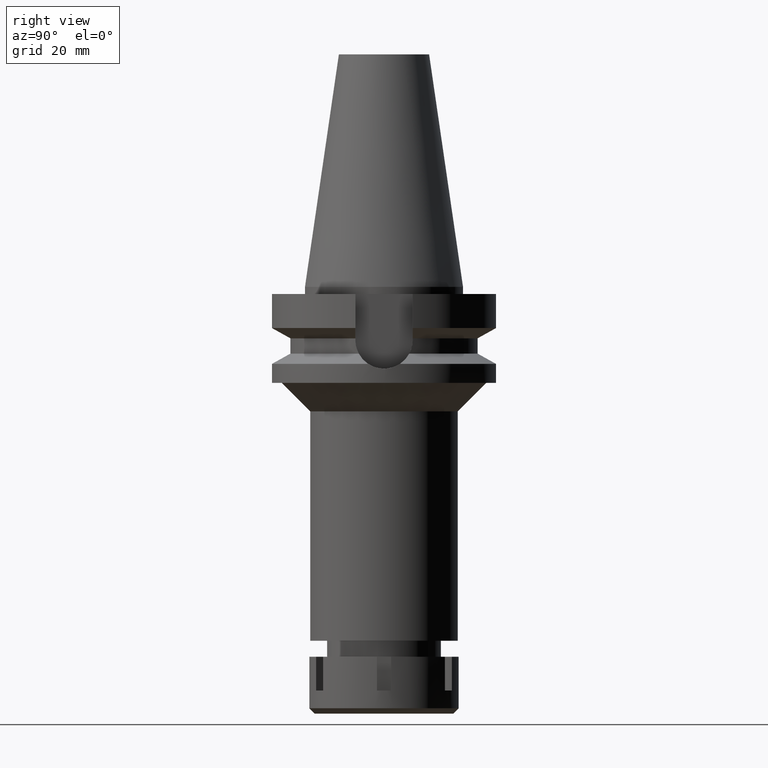
[diagram: clean part render]
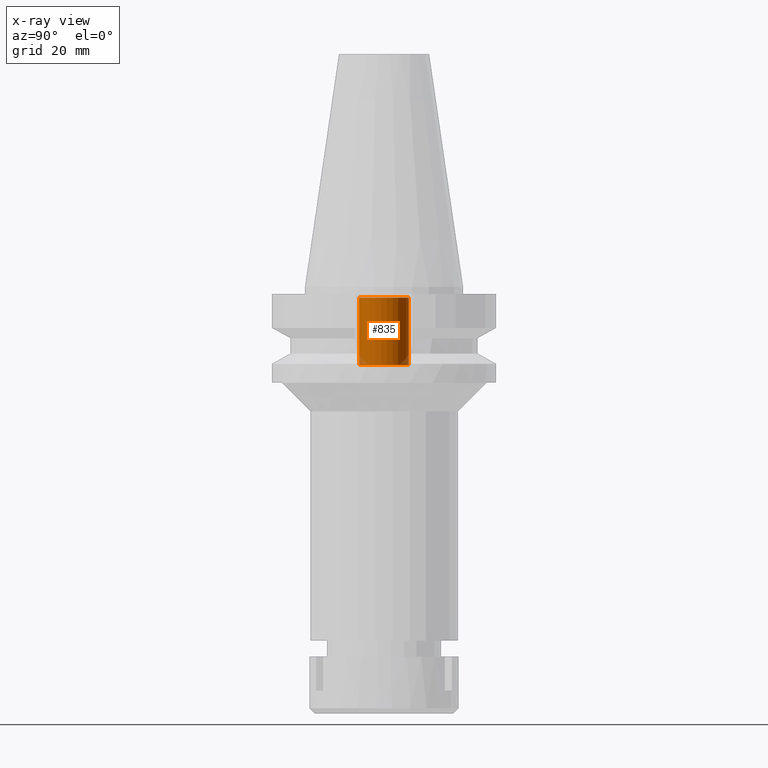
[diagram: x-ray — body ghosted, one internal face saturated and labeled with its STEP entity id]
A machine part, right view, then the same camera in x-ray: the body is ghosted and one INTERNAL B-rep face — a face not visible from any outside direction — is saturated and labeled: STEP entity #835.
In plain terms, the highlighted cylindrical surface (edge-blend (fillet) strip) has radius 7 mm, axis along (0, 0, -1).
Its self-contained STEP definition (entity closure, byte-faithful):
#43 = CYLINDRICAL_SURFACE ( 'NONE', #215, 7.000000000000000000 ) ;
#197 = CARTESIAN_POINT ( 'NONE',  ( 0.0000000000000000000, -7.000000000000000000, -22.00000000000000000 ) ) ;
#215 = AXIS2_PLACEMENT_3D ( 'NONE', #3120, #944, #1429 ) ;
#303 = CARTESIAN_POINT ( 'NONE',  ( 0.0000000000000000000, 7.000000000000000000, -22.00000000000000000 ) ) ;
#326 = LINE ( 'NONE', #1444, #579 ) ;
#579 = VECTOR ( 'NONE', #1172, 1000.000000000000000 ) ;
#581 = CIRCLE ( 'NONE', #3581, 7.000000000000000000 ) ;
#704 = DIRECTION ( 'NONE',  ( 0.0000000000000000000, -1.000000000000000000, 0.0000000000000000000 ) ) ;
#835 = ADVANCED_FACE ( 'NONE', ( #2027 ), #43, .F. ) ;
#900 = VERTEX_POINT ( 'NONE', #2343 ) ;
#919 = AXIS2_PLACEMENT_3D ( 'NONE', #3301, #1113, #3092 ) ;
#944 = DIRECTION ( 'NONE',  ( 0.0000000000000000000, 0.0000000000000000000, -1.000000000000000000 ) ) ;
#975 = DIRECTION ( 'NONE',  ( 0.0000000000000000000, 0.0000000000000000000, 1.000000000000000000 ) ) ;
#1113 = DIRECTION ( 'NONE',  ( 0.0000000000000000000, 0.0000000000000000000, -1.000000000000000000 ) ) ;
#1163 = EDGE_CURVE ( 'NONE', #2415, #1604, #2815, .T. ) ;
#1172 = DIRECTION ( 'NONE',  ( 0.0000000000000000000, 0.0000000000000000000, 1.000000000000000000 ) ) ;
#1193 = VERTEX_POINT ( 'NONE', #1983 ) ;
#1290 = ORIENTED_EDGE ( 'NONE', *, *, #3506, .T. ) ;
#1429 = DIRECTION ( 'NONE',  ( 0.0000000000000000000, -1.000000000000000000, 0.0000000000000000000 ) ) ;
#1444 = CARTESIAN_POINT ( 'NONE',  ( 0.0000000000000000000, 7.000000000000000000, -22.00000000000000000 ) ) ;
#1446 = ORIENTED_EDGE ( 'NONE', *, *, #3065, .T. ) ;
#1488 = ORIENTED_EDGE ( 'NONE', *, *, #1163, .T. ) ;
#1604 = VERTEX_POINT ( 'NONE', #197 ) ;
#1954 = CARTESIAN_POINT ( 'NONE',  ( 0.0000000000000000000, -7.000000000000000000, -22.00000000000000000 ) ) ;
#1983 = CARTESIAN_POINT ( 'NONE',  ( 0.0000000000000000000, -7.000000000000000000, -3.000000000000000000 ) ) ;
#2027 = FACE_OUTER_BOUND ( 'NONE', #3028, .T. ) ;
#2058 = EDGE_CURVE ( 'NONE', #2415, #900, #326, .T. ) ;
#2343 = CARTESIAN_POINT ( 'NONE',  ( 0.0000000000000000000, 7.000000000000000000, -3.000000000000000000 ) ) ;
#2359 = VECTOR ( 'NONE', #2814, 1000.000000000000000 ) ;
#2415 = VERTEX_POINT ( 'NONE', #303 ) ;
#2489 = LINE ( 'NONE', #1954, #2359 ) ;
#2682 = CARTESIAN_POINT ( 'NONE',  ( 0.0000000000000000000, 2.134191976873999699E-14, -3.000000000000000000 ) ) ;
#2741 = ORIENTED_EDGE ( 'NONE', *, *, #2058, .F. ) ;
#2814 = DIRECTION ( 'NONE',  ( 0.0000000000000000000, 0.0000000000000000000, 1.000000000000000000 ) ) ;
#2815 = CIRCLE ( 'NONE', #919, 7.000000000000000000 ) ;
#3028 = EDGE_LOOP ( 'NONE', ( #1488, #1290, #1446, #2741 ) ) ;
#3065 = EDGE_CURVE ( 'NONE', #1193, #900, #581, .T. ) ;
#3092 = DIRECTION ( 'NONE',  ( 0.0000000000000000000, 1.000000000000000000, 0.0000000000000000000 ) ) ;
#3120 = CARTESIAN_POINT ( 'NONE',  ( 0.0000000000000000000, 2.134191976873999699E-14, 74.26999999999999602 ) ) ;
#3301 = CARTESIAN_POINT ( 'NONE',  ( 0.0000000000000000000, 2.134191976873999699E-14, -22.00000000000000000 ) ) ;
#3506 = EDGE_CURVE ( 'NONE', #1604, #1193, #2489, .T. ) ;
#3581 = AXIS2_PLACEMENT_3D ( 'NONE', #2682, #975, #704 ) ;